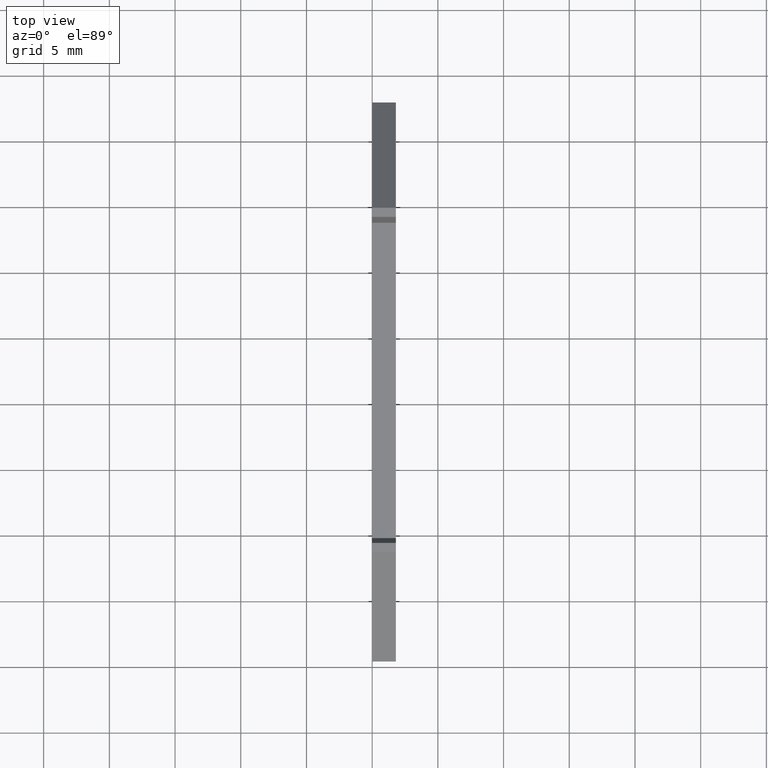
[diagram: clean part render]
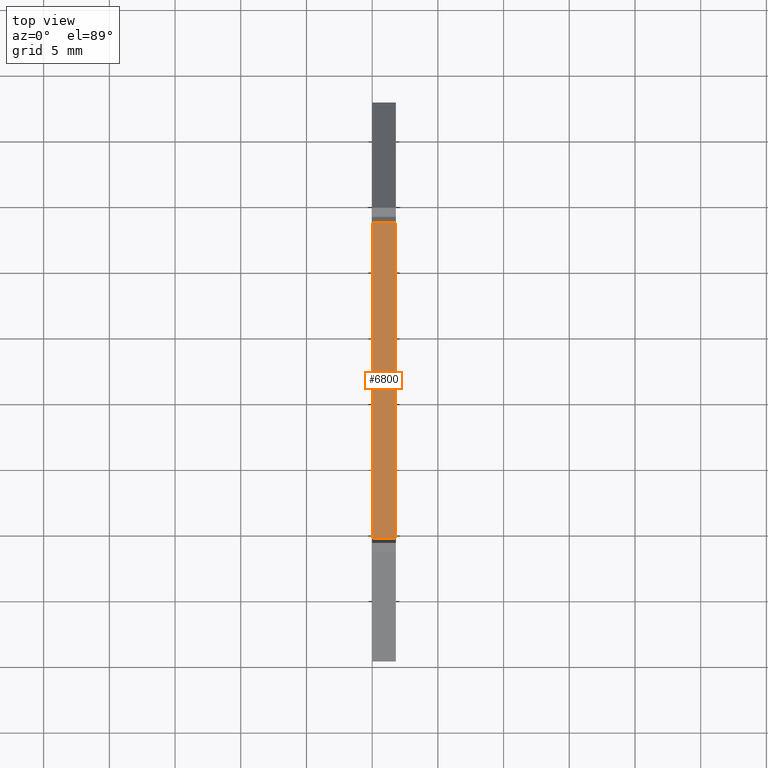
[diagram: same view with one face highlighted and labeled with its STEP entity id]
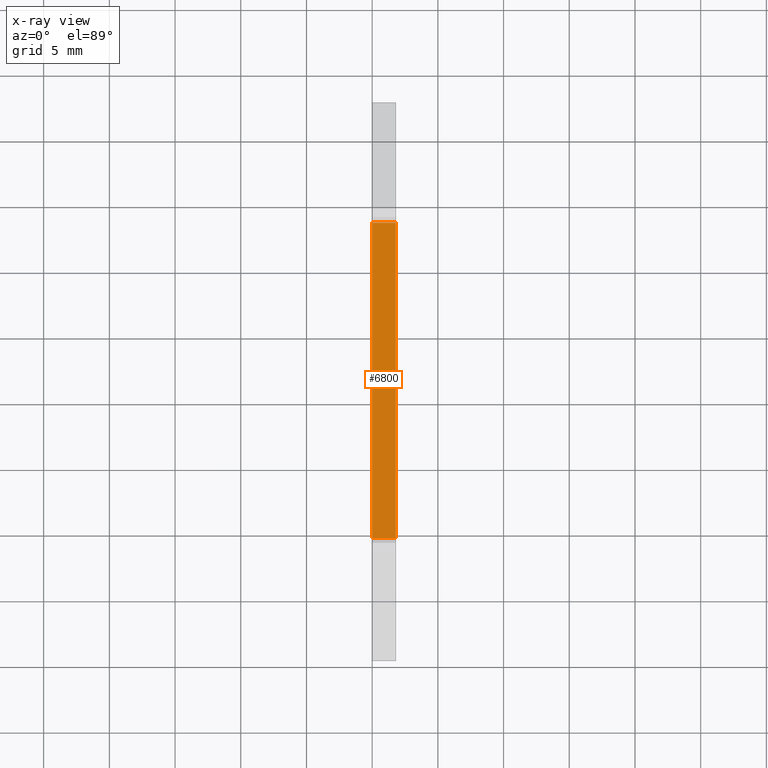
[diagram: x-ray of the same camera — body ghosted, the highlighted face saturated]
A machine part, top view. The second image highlights one B-rep face of the part: STEP entity #6800.
The next image is the same camera in x-ray: the body ghosted, the highlighted face saturated — about 0% of this face is hidden behind the body in this view.
In plain terms, the highlighted planar face has unit normal (-0, -0, 1).
Its self-contained STEP definition (entity closure, byte-faithful):
#1080=CARTESIAN_POINT('',(41.5443975377984,262.208100844792,-3.3));
#1090=VERTEX_POINT('',#1080);
#1120=CARTESIAN_POINT('',(0.,262.208100844792,-3.3));
#1130=DIRECTION('',(-1.,0.,0.));
#1140=VECTOR('',#1130,1.);
#1150=LINE('',#1120,#1140);
#1160=CARTESIAN_POINT('',(17.5443975377984,262.208100844792,-3.3));
#1170=VERTEX_POINT('',#1160);
#1180=EDGE_CURVE('',#1090,#1170,#1150,.T.);
#1950=CARTESIAN_POINT('',(17.5443975377984,262.208100844792,-1.5));
#1960=VERTEX_POINT('',#1950);
#1990=CARTESIAN_POINT('',(0.,262.208100844792,-1.5));
#2000=DIRECTION('',(-1.,0.,0.));
#2010=VECTOR('',#2000,1.);
#2020=LINE('',#1990,#2010);
#2030=CARTESIAN_POINT('',(41.5443975377984,262.208100844792,-1.5));
#2040=VERTEX_POINT('',#2030);
#2050=EDGE_CURVE('',#2040,#1960,#2020,.T.);
#5780=CARTESIAN_POINT('',(41.5443975377984,262.208100844792,0.));
#5790=DIRECTION('',(0.,0.,1.));
#5800=VECTOR('',#5790,1.);
#5810=LINE('',#5780,#5800);
#5820=EDGE_CURVE('',#1090,#2040,#5810,.T.);
#6640=CARTESIAN_POINT('',(41.5443975377984,262.208100844792,0.));
#6650=DIRECTION('',(-0.,1.,0.));
#6660=DIRECTION('',(1.,0.,0.));
#6670=AXIS2_PLACEMENT_3D('',#6640,#6650,#6660);
#6680=PLANE('',#6670);
#6690=CARTESIAN_POINT('',(17.5443975377984,262.208100844792,0.));
#6700=DIRECTION('',(0.,0.,-1.));
#6710=VECTOR('',#6700,1.);
#6720=LINE('',#6690,#6710);
#6730=EDGE_CURVE('',#1960,#1170,#6720,.T.);
#6740=ORIENTED_EDGE('',*,*,#6730,.F.);
#6750=ORIENTED_EDGE('',*,*,#1180,.T.);
#6760=ORIENTED_EDGE('',*,*,#5820,.F.);
#6770=ORIENTED_EDGE('',*,*,#2050,.F.);
#6780=EDGE_LOOP('',(#6770,#6760,#6750,#6740));
#6790=FACE_OUTER_BOUND('',#6780,.T.);
#6800=ADVANCED_FACE('',(#6790),#6680,.T.);